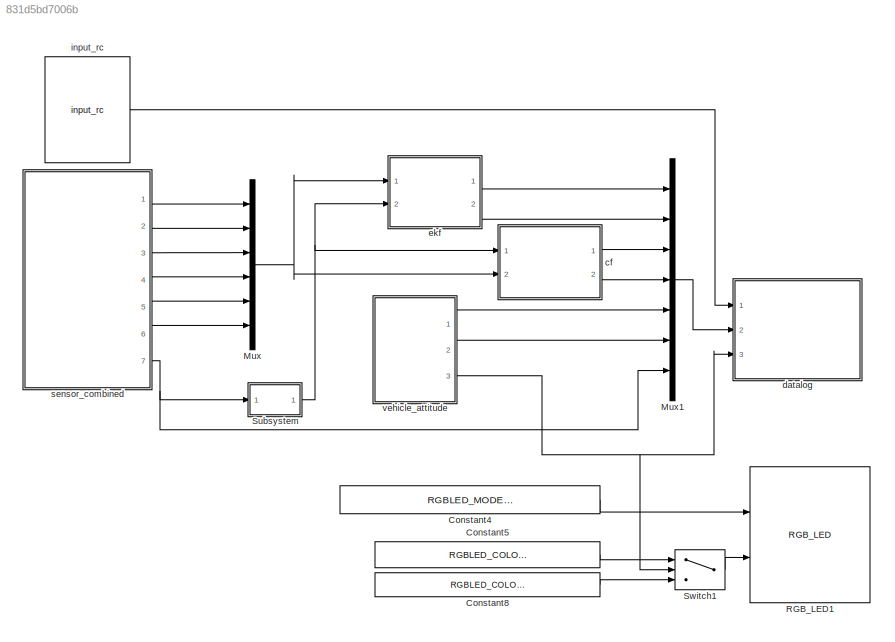
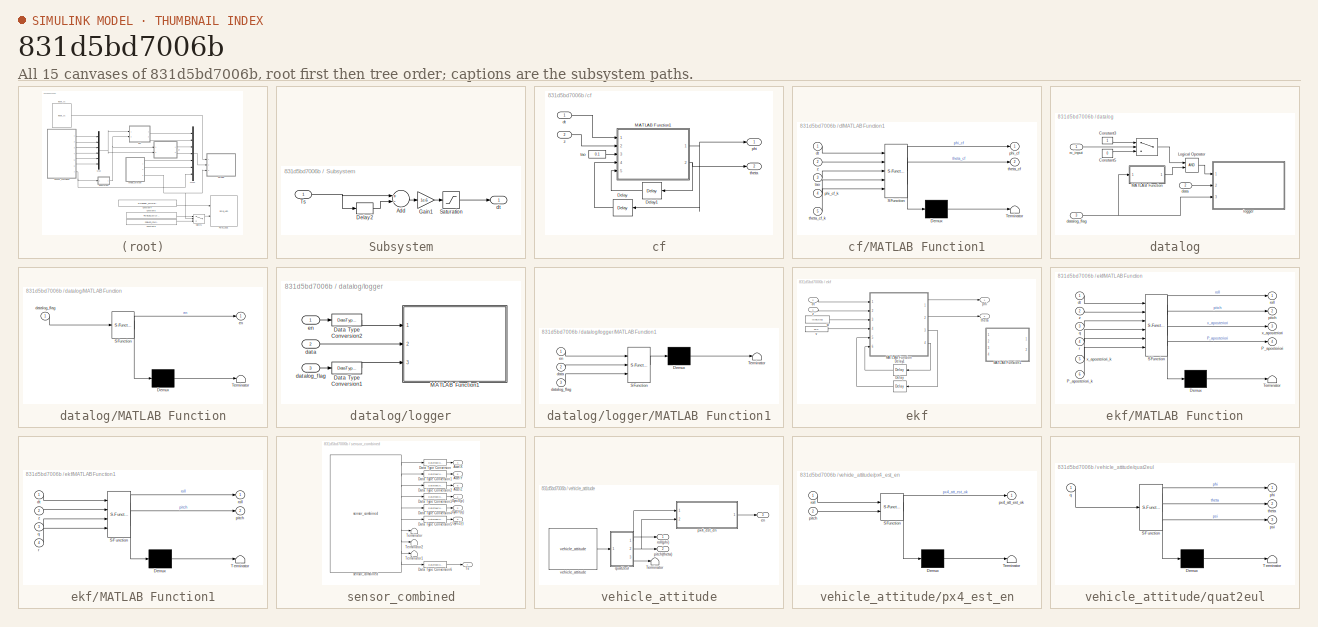
[diagram: thumbnail index - all 15 canvases of the model, root first then tree order]
MODEL slx_831d5bd7006b
KIND model
CONFIG AbsTol = auto
CONFIG EnableMultiTasking = on
CONFIG FixedStep = 0.001
CONFIG MaxStep = auto
CONFIG MinStep = auto
CONFIG RelTol = 1e-3
CONFIG SampleTimeConstraint = Unconstrained
CONFIG Solver = ode4
CONFIG SolverName = ode4
CONFIG StartTime = 0.0
CONFIG StopTime = 10.0
BLOCK [Constant] Constant4
  OutDataTypeStr = Enum: RGBLED_MODE_ENUM
  Value = RGBLED_MODE_ENUM.SL_MODE_BLINK_NORMAL
BLOCK [Constant] Constant5
  OutDataTypeStr = Enum: RGBLED_COLOR_ENUM
  Value = RGBLED_COLOR_ENUM.SL_COLOR_GREEN
BLOCK [Constant] Constant8
  OutDataTypeStr = Enum: RGBLED_COLOR_ENUM
  Value = RGBLED_COLOR_ENUM.SL_COLOR_RED
BLOCK [Mux] Mux
  DisplayOption = bar
  Inputs = 6
  Ports = [6, 1]
BLOCK [Mux] Mux1
  DisplayOption = bar
  Inputs = 7
  Ports = [7, 1]
BLOCK [Reference] RGB_LED1  REF=pixhawk_slib_sensors_actuators/RGB_LED
  Description = This block gives the user control over various lighting modes of the RGB LED available on the PX4 hardware. \nThis block accepts 2 inputs: Mode and Color.  These are enumeration data types.  You can find out what values are valid in the MATLAB command window by typing: \nEnumeration members for class 'RGBLED_COLOR_ENUM':\n    SL_COLOR_OFF\n    SL_COLOR_RED\n    SL_COLOR_GREEN\n    SL_COLOR_BLUE\n    SL_C...<+378ch>
  Ports = [2]
  SourceBlock = pixhawk_slib_sensors_actuators/RGB_LED
  SourceProductName = Pixhawk Target Blocks
  SourceType = PX4_RGBLED - controls the mode and color of the Pixhawk RGB LED
BLOCK [SubSystem] Subsystem
  Ports = [1, 1]
  RequestExecContextInheritance = off
  Variant = off
BLOCK [Sum] Subsystem/Add
  InputSameDT = off
  Inputs = +-
  OutDataTypeStr = Inherit: Inherit via internal rule
  Ports = [2, 1]
  SaturateOnIntegerOverflow = off
BLOCK [Delay] Subsystem/Delay2
  DelayLength = 1
  InputPortMap = u0
  Ports = [1, 1]
BLOCK [Gain] Subsystem/Gain1
  Gain = 1e-6
  OutDataTypeStr = Inherit: Inherit via internal rule
  ParamDataTypeStr = Inherit: Inherit via internal rule
  SaturateOnIntegerOverflow = off
BLOCK [Saturate] Subsystem/Saturation
  InputPortMap = u0
  LowerLimit = 0.001
  Ports = [1, 1]
  UpperLimit = 0.1
BLOCK [Inport] Subsystem/Ts
  IconDisplay = Port number
BLOCK [Outport] Subsystem/dt
  IconDisplay = Port number
BLOCK [Switch] Switch1
  Criteria = u2 ~= 0
  InputSameDT = off
  SaturateOnIntegerOverflow = off
  Threshold = 1500
BLOCK [SubSystem] cf
  Ports = [2, 2]
  RequestExecContextInheritance = off
  Variant = off
BLOCK [Delay] cf/Delay
  DelayLength = 1
  InitialCondition = 0
  InputPortMap = u0
  Ports = [1, 1]
BLOCK [Delay] cf/Delay1
  DelayLength = 1
  InitialCondition = 0
  InputPortMap = u0
  Ports = [1, 1]
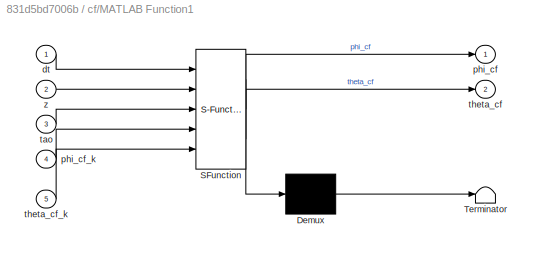
BLOCK [SubSystem] cf/MATLAB Function1
  ErrorFcn = Stateflow.Translate.translate
  PermitHierarchicalResolution = ExplicitOnly
  Ports = [5, 2]
  RequestExecContextInheritance = off
  SFBlockType = MATLAB Function
  TreatAsAtomicUnit = on
  Variant = off
BLOCK [Demux] cf/MATLAB Function1/ Demux 
  Outputs = 1
  Ports = [1, 1]
BLOCK [S-Function] cf/MATLAB Function1/ SFunction 
  EnableBusSupport = on
  FunctionName = sf_sfun
  PortCounts = [5 3]
  Ports = [5, 3]
  SFcnIsStateOwnerBlock = off
  SFunctionDeploymentMode = off
  Tag = Stateflow S-Function ekf_cf1 1
BLOCK [Terminator] cf/MATLAB Function1/ Terminator 
BLOCK [Inport] cf/MATLAB Function1/dt
  IconDisplay = Port number
BLOCK [Outport] cf/MATLAB Function1/phi_cf
  IconDisplay = Port number
BLOCK [Inport] cf/MATLAB Function1/phi_cf_k
  IconDisplay = Port number
  Port = 4
BLOCK [Inport] cf/MATLAB Function1/tao
  IconDisplay = Port number
  Port = 3
BLOCK [Outport] cf/MATLAB Function1/theta_cf
  IconDisplay = Port number
  Port = 2
BLOCK [Inport] cf/MATLAB Function1/theta_cf_k
  IconDisplay = Port number
  Port = 5
BLOCK [Inport] cf/MATLAB Function1/z
  IconDisplay = Port number
  Port = 2
BLOCK [Inport] cf/dt
  IconDisplay = Port number
BLOCK [Outport] cf/phi
  IconDisplay = Port number
BLOCK [Constant] cf/tao
  OutDataTypeStr = single
  Value = 0.1
BLOCK [Outport] cf/theta
  IconDisplay = Port number
  Port = 2
BLOCK [Inport] cf/z
  IconDisplay = Port number
  Port = 2
BLOCK [SubSystem] datalog
  Ports = [3]
  RequestExecContextInheritance = off
  Variant = off
BLOCK [Switch] datalog/ 
  Criteria = u2 > Threshold
  InputSameDT = off
  SaturateOnIntegerOverflow = off
  Threshold = 1600
BLOCK [Constant] datalog/Constant3
BLOCK [Constant] datalog/Constant5
  Value = 0
BLOCK [Logic] datalog/Logical Operator
  AllPortsSameDT = off
  OutDataTypeStr = boolean
  Ports = [2, 1]
BLOCK [SubSystem] datalog/MATLAB Function
  ErrorFcn = Stateflow.Translate.translate
  PermitHierarchicalResolution = ExplicitOnly
  Ports = [1, 1]
  RequestExecContextInheritance = off
  SFBlockType = MATLAB Function
  TreatAsAtomicUnit = on
  Variant = off
BLOCK [Demux] datalog/MATLAB Function/ Demux 
  Outputs = 1
  Ports = [1, 1]
BLOCK [S-Function] datalog/MATLAB Function/ SFunction 
  EnableBusSupport = on
  FunctionName = sf_sfun
  PortCounts = [1 2]
  Ports = [1, 2]
  SFcnIsStateOwnerBlock = off
  SFunctionDeploymentMode = off
  Tag = Stateflow S-Function ekf_cf1 4
BLOCK [Terminator] datalog/MATLAB Function/ Terminator 
BLOCK [Inport] datalog/MATLAB Function/datalog_flag
  IconDisplay = Port number
BLOCK [Outport] datalog/MATLAB Function/en
  IconDisplay = Port number
BLOCK [Inport] datalog/data
  IconDisplay = Port number
  Port = 2
BLOCK [Inport] datalog/datalog_flag
  IconDisplay = Port number
  Port = 3
BLOCK [SubSystem] datalog/logger
  Ports = [3]
  RequestExecContextInheritance = off
  Variant = off
BLOCK [DataTypeConversion] datalog/logger/Data Type Conversion1
  OutDataTypeStr = boolean
  RndMeth = Floor
  SaturateOnIntegerOverflow = off
BLOCK [DataTypeConversion] datalog/logger/Data Type Conversion2
  OutDataTypeStr = boolean
  RndMeth = Floor
  SaturateOnIntegerOverflow = off
BLOCK [SubSystem] datalog/logger/MATLAB Function1
  ErrorFcn = Stateflow.Translate.translate
  PermitHierarchicalResolution = ExplicitOnly
  Ports = [3]
  RequestExecContextInheritance = off
  SFBlockType = MATLAB Function
  TreatAsAtomicUnit = on
  Variant = off
BLOCK [Demux] datalog/logger/MATLAB Function1/ Demux 
  Outputs = 1
  Ports = [1, 1]
BLOCK [S-Function] datalog/logger/MATLAB Function1/ SFunction 
  EnableBusSupport = on
  FunctionName = sf_sfun
  Parameters = cacheflag,logname,numRecs
  PortCounts = [3 1]
  Ports = [3, 1]
  SFcnIsStateOwnerBlock = off
  SFunctionDeploymentMode = off
  Tag = Stateflow S-Function ekf_cf1 5
BLOCK [Terminator] datalog/logger/MATLAB Function1/ Terminator 
BLOCK [Inport] datalog/logger/MATLAB Function1/data
  IconDisplay = Port number
  Port = 2
BLOCK [Inport] datalog/logger/MATLAB Function1/datalog_flag
  IconDisplay = Port number
  Port = 3
BLOCK [Inport] datalog/logger/MATLAB Function1/en
  IconDisplay = Port number
BLOCK [Inport] datalog/logger/data
  IconDisplay = Port number
  Port = 2
BLOCK [Inport] datalog/logger/datalog_flag
  IconDisplay = Port number
  Port = 3
BLOCK [Inport] datalog/logger/en
  IconDisplay = Port number
BLOCK [Inport] datalog/rc_input
  IconDisplay = Port number
BLOCK [SubSystem] ekf
  Ports = [2, 2]
  RequestExecContextInheritance = off
  Variant = off
BLOCK [Delay] ekf/Delay
  DelayLength = 1
  InitialCondition = single([0, 0, 0, 0, 0, -1]')
  InputPortMap = u0
  Ports = [1, 1]
BLOCK [Delay] ekf/Delay1
  DelayLength = 1
  InitialCondition = single(eye(6, 6)*100)
  InputPortMap = u0
  Ports = [1, 1]
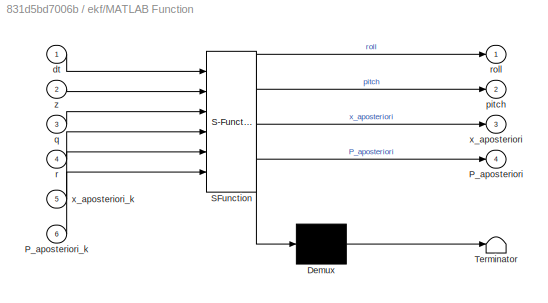
BLOCK [SubSystem] ekf/MATLAB Function
  ErrorFcn = Stateflow.Translate.translate
  PermitHierarchicalResolution = ExplicitOnly
  Ports = [6, 4]
  RequestExecContextInheritance = off
  SFBlockType = MATLAB Function
  TreatAsAtomicUnit = on
  Variant = off
BLOCK [Demux] ekf/MATLAB Function/ Demux 
  Outputs = 1
  Ports = [1, 1]
BLOCK [S-Function] ekf/MATLAB Function/ SFunction 
  EnableBusSupport = on
  FunctionName = sf_sfun
  PortCounts = [6 5]
  Ports = [6, 5]
  SFcnIsStateOwnerBlock = off
  SFunctionDeploymentMode = off
  Tag = Stateflow S-Function ekf_cf1 2
BLOCK [Terminator] ekf/MATLAB Function/ Terminator 
BLOCK [Outport] ekf/MATLAB Function/P_aposteriori
  IconDisplay = Port number
  Port = 4
BLOCK [Inport] ekf/MATLAB Function/P_aposteriori_k
  IconDisplay = Port number
  Port = 6
BLOCK [Inport] ekf/MATLAB Function/dt
  IconDisplay = Port number
BLOCK [Outport] ekf/MATLAB Function/pitch
  IconDisplay = Port number
  Port = 2
BLOCK [Inport] ekf/MATLAB Function/q
  IconDisplay = Port number
  Port = 3
BLOCK [Inport] ekf/MATLAB Function/r
  IconDisplay = Port number
  Port = 4
BLOCK [Outport] ekf/MATLAB Function/roll
  IconDisplay = Port number
BLOCK [Outport] ekf/MATLAB Function/x_aposteriori
  IconDisplay = Port number
  Port = 3
BLOCK [Inport] ekf/MATLAB Function/x_aposteriori_k
  IconDisplay = Port number
  Port = 5
BLOCK [Inport] ekf/MATLAB Function/z
  IconDisplay = Port number
  Port = 2
BLOCK [SubSystem] ekf/MATLAB Function1
  Commented = on
  ErrorFcn = Stateflow.Translate.translate
  PermitHierarchicalResolution = ExplicitOnly
  Ports = [4, 2]
  RequestExecContextInheritance = off
  SFBlockType = MATLAB Function
  TreatAsAtomicUnit = on
  Variant = off
BLOCK [Demux] ekf/MATLAB Function1/ Demux 
  Outputs = 1
  Ports = [1, 1]
BLOCK [S-Function] ekf/MATLAB Function1/ SFunction 
  EnableBusSupport = on
  FunctionName = sf_sfun
  PortCounts = [4 3]
  Ports = [4, 3]
  SFcnIsStateOwnerBlock = off
  SFunctionDeploymentMode = off
  Tag = Stateflow S-Function ekf_cf1 7
BLOCK [Terminator] ekf/MATLAB Function1/ Terminator 
BLOCK [Inport] ekf/MATLAB Function1/dt
  IconDisplay = Port number
BLOCK [Outport] ekf/MATLAB Function1/pitch
  IconDisplay = Port number
  Port = 2
BLOCK [Inport] ekf/MATLAB Function1/q
  IconDisplay = Port number
  Port = 3
BLOCK [Inport] ekf/MATLAB Function1/r
  IconDisplay = Port number
  Port = 4
BLOCK [Outport] ekf/MATLAB Function1/roll
  IconDisplay = Port number
BLOCK [Inport] ekf/MATLAB Function1/z
  IconDisplay = Port number
  Port = 2
BLOCK [Inport] ekf/dt
  IconDisplay = Port number
  Port = 2
BLOCK [Outport] ekf/phi
  IconDisplay = Port number
BLOCK [Outport] ekf/theta
  IconDisplay = Port number
  Port = 2
BLOCK [Constant] ekf/v
  Value = 50.0
BLOCK [Constant] ekf/w
  Value = [0.08,0.01]
BLOCK [Inport] ekf/z
  IconDisplay = Port number
BLOCK [Reference] input_rc  REF=pixhawk_slib_sensors_actuators/input_rc
  Description = RC Input Block\n\nThis block provides user input control to the model.\nIt uses the input_rc uORB topic.\n\nThe user has the ability to choose which channels are available as outputs from this block and also some optional outputs. These include \nChannels 1 through 18\ndouble data type indicating the PWM value from the controller \nmeasured pulse widths for each of the supported channels \nChannel Count \nu...<+1797ch>
  Ports = [0, 1]
  SourceBlock = pixhawk_slib_sensors_actuators/input_rc
  SourceProductName = Pixhawk Target Blocks
  SourceType = PX4_Input_RC
BLOCK [SubSystem] sensor_combined
  Ports = [0, 7]
  RequestExecContextInheritance = off
  Variant = off
BLOCK [Outport] sensor_combined/AccelX
  IconDisplay = Port number
  Port = 4
BLOCK [Outport] sensor_combined/AccelY
  IconDisplay = Port number
  Port = 5
BLOCK [Outport] sensor_combined/AccelZ
  IconDisplay = Port number
  Port = 6
BLOCK [DataTypeConversion] sensor_combined/Data Type Conversion
  OutDataTypeStr = single
  RndMeth = Floor
  SaturateOnIntegerOverflow = off
BLOCK [DataTypeConversion] sensor_combined/Data Type Conversion1
  OutDataTypeStr = single
  RndMeth = Floor
  SaturateOnIntegerOverflow = off
BLOCK [DataTypeConversion] sensor_combined/Data Type Conversion2
  OutDataTypeStr = single
  RndMeth = Floor
  SaturateOnIntegerOverflow = off
BLOCK [DataTypeConversion] sensor_combined/Data Type Conversion3
  OutDataTypeStr = single
  RndMeth = Floor
  SaturateOnIntegerOverflow = off
BLOCK [DataTypeConversion] sensor_combined/Data Type Conversion4
  OutDataTypeStr = single
  RndMeth = Floor
  SaturateOnIntegerOverflow = off
BLOCK [DataTypeConversion] sensor_combined/Data Type Conversion5
  OutDataTypeStr = single
  RndMeth = Floor
  SaturateOnIntegerOverflow = off
BLOCK [DataTypeConversion] sensor_combined/Data Type Conversion6
  OutDataTypeStr = single
  RndMeth = Floor
  SaturateOnIntegerOverflow = off
BLOCK [Outport] sensor_combined/GyroX(p)
  IconDisplay = Port number
BLOCK [Outport] sensor_combined/GyroY(q)
  IconDisplay = Port number
  Port = 2
BLOCK [Outport] sensor_combined/GyroZ(r)
  IconDisplay = Port number
  Port = 3
BLOCK [Terminator] sensor_combined/Terminator
BLOCK [Terminator] sensor_combined/Terminator1
BLOCK [Terminator] sensor_combined/Terminator2
BLOCK [Outport] sensor_combined/Ts
  IconDisplay = Port number
  Port = 7
BLOCK [Reference] sensor_combined/sensor_combined  REF=pixhawk_slib_sensors_actuators/sensor_combined
  Description = Sensor Combined Block\n\nThis block enables access to the various sensors available on the px4fmu-v2 hardware.  \nThe user can use these signals in the Simulink control model.  \nThe sample time needs to be provided in the mask dialog.  \nOptional output ports can also be selected.  \nRefer to the sample model: px4demo_attitude_control.slx\n\nSignal definitions: \nMagnetometer (x,y,z) - single values – Mag...<+514ch>
  Ports = [0, 10]
  SourceBlock = pixhawk_slib_sensors_actuators/sensor_combined
  SourceProductName = Pixhawk Target Blocks
  SourceType = PX4_Sensor_Combined
BLOCK [SubSystem] vehicle_attitude
  Ports = [0, 3]
  RequestExecContextInheritance = off
  Variant = off
BLOCK [Terminator] vehicle_attitude/Terminator
BLOCK [Outport] vehicle_attitude/en
  IconDisplay = Port number
  Port = 3
BLOCK [Outport] vehicle_attitude/pitch(theta)
  IconDisplay = Port number
  Port = 2
BLOCK [SubSystem] vehicle_attitude/px4_est_en
  ErrorFcn = Stateflow.Translate.translate
  PermitHierarchicalResolution = ExplicitOnly
  Ports = [2, 1]
  RequestExecContextInheritance = off
  SFBlockType = MATLAB Function
  TreatAsAtomicUnit = on
  Variant = off
BLOCK [Demux] vehicle_attitude/px4_est_en/ Demux 
  Outputs = 1
  Ports = [1, 1]
BLOCK [S-Function] vehicle_attitude/px4_est_en/ SFunction 
  EnableBusSupport = on
  FunctionName = sf_sfun
  PortCounts = [2 2]
  Ports = [2, 2]
  SFcnIsStateOwnerBlock = off
  SFunctionDeploymentMode = off
  Tag = Stateflow S-Function ekf_cf1 3
BLOCK [Terminator] vehicle_attitude/px4_est_en/ Terminator 
BLOCK [Inport] vehicle_attitude/px4_est_en/pitch
  IconDisplay = Port number
  Port = 2
BLOCK [Outport] vehicle_attitude/px4_est_en/px4_att_est_ok
  IconDisplay = Port number
BLOCK [Inport] vehicle_attitude/px4_est_en/roll
  IconDisplay = Port number
BLOCK [SubSystem] vehicle_attitude/quat2eul
  ErrorFcn = Stateflow.Translate.translate
  PermitHierarchicalResolution = ExplicitOnly
  Ports = [1, 3]
  RequestExecContextInheritance = off
  SFBlockType = MATLAB Function
  TreatAsAtomicUnit = on
  Variant = off
BLOCK [Demux] vehicle_attitude/quat2eul/ Demux 
  Outputs = 1
  Ports = [1, 1]
BLOCK [S-Function] vehicle_attitude/quat2eul/ SFunction 
  EnableBusSupport = on
  FunctionName = sf_sfun
  PortCounts = [1 4]
  Ports = [1, 4]
  SFcnIsStateOwnerBlock = off
  SFunctionDeploymentMode = off
  Tag = Stateflow S-Function ekf_cf1 10
BLOCK [Terminator] vehicle_attitude/quat2eul/ Terminator 
BLOCK [Outport] vehicle_attitude/quat2eul/phi
  IconDisplay = Port number
BLOCK [Outport] vehicle_attitude/quat2eul/psi
  IconDisplay = Port number
  Port = 3
BLOCK [Inport] vehicle_attitude/quat2eul/q
  IconDisplay = Port number
BLOCK [Outport] vehicle_attitude/quat2eul/theta
  IconDisplay = Port number
  Port = 2
BLOCK [Outport] vehicle_attitude/roll(phi)
  IconDisplay = Port number
BLOCK [Reference] vehicle_attitude/vehicle_attitude  REF=pixhawk_slib_sensors_actuators/vehicle_attitude
  Description = This block gives access to the running service that calculates the vehicle’s attitude.  A uORB topic (vehicle_attitude (attitude measurements)) publisher MUST be running in order for this block to provide valid signal values.  The available ones as of v1.3 are: \nattitude_estimator_ekf – EKF-Extended Kalman Filter for attitude estimation \nattitude_estimator_so3 – SO(3)-attitude estimation by using ...<+515ch>
  Ports = [0, 1]
  SourceBlock = pixhawk_slib_sensors_actuators/vehicle_attitude
  SourceProductName = Pixhawk Target Blocks
  SourceType = PX4_Vehicle_Attitude
LINE Constant4:1 -> RGB_LED1:1
LINE Constant5:1 -> Switch1:1
LINE Constant8:1 -> Switch1:3
LINE Mux1:1 -> datalog:2
NET Mux:1 -> cf:2, ekf:1
LINE Subsystem/Add:1 -> Subsystem/Gain1:1
LINE Subsystem/Delay2:1 -> Subsystem/Add:2
LINE Subsystem/Gain1:1 -> Subsystem/Saturation:1
LINE Subsystem/Saturation:1 -> Subsystem/dt:1
NET Subsystem/Ts:1 -> Subsystem/Add:1, Subsystem/Delay2:1
NET Subsystem:1 -> cf:1, ekf:2
LINE Switch1:1 -> RGB_LED1:2
LINE cf/Delay1:1 -> cf/MATLAB Function1:5
LINE cf/Delay:1 -> cf/MATLAB Function1:4
NET cf/MATLAB Function1:1 -> cf/Delay:1, cf/phi:1
NET cf/MATLAB Function1:2 -> cf/Delay1:1, cf/theta:1
LINE cf/dt:1 -> cf/MATLAB Function1:1
LINE cf/tao:1 -> cf/MATLAB Function1:3
LINE cf/z:1 -> cf/MATLAB Function1:2
LINE cf:1 -> Mux1:3
LINE cf:2 -> Mux1:4
LINE datalog/ :1 -> datalog/Logical Operator:1
LINE datalog/Constant3:1 -> datalog/ :1
LINE datalog/Constant5:1 -> datalog/ :3
LINE datalog/Logical Operator:1 -> datalog/logger:1
LINE datalog/MATLAB Function:1 -> datalog/Logical Operator:2
LINE datalog/data:1 -> datalog/logger:2
NET datalog/datalog_flag:1 -> datalog/MATLAB Function:1, datalog/logger:3
LINE datalog/logger/Data Type Conversion1:1 -> datalog/logger/MATLAB Function1:3
LINE datalog/logger/Data Type Conversion2:1 -> datalog/logger/MATLAB Function1:1
LINE datalog/logger/data:1 -> datalog/logger/MATLAB Function1:2
LINE datalog/logger/datalog_flag:1 -> datalog/logger/Data Type Conversion1:1
LINE datalog/logger/en:1 -> datalog/logger/Data Type Conversion2:1
LINE datalog/rc_input:1 -> datalog/ :2
LINE ekf/Delay1:1 -> ekf/MATLAB Function:6
LINE ekf/Delay:1 -> ekf/MATLAB Function:5
LINE ekf/MATLAB Function:1 -> ekf/phi:1
LINE ekf/MATLAB Function:2 -> ekf/theta:1
LINE ekf/MATLAB Function:3 -> ekf/Delay:1
LINE ekf/MATLAB Function:4 -> ekf/Delay1:1
LINE ekf/dt:1 -> ekf/MATLAB Function:1
LINE ekf/v:1 -> ekf/MATLAB Function:4
LINE ekf/w:1 -> ekf/MATLAB Function:3
LINE ekf/z:1 -> ekf/MATLAB Function:2
LINE ekf:1 -> Mux1:1
LINE ekf:2 -> Mux1:2
LINE input_rc:1 -> datalog:1
LINE sensor_combined/Data Type Conversion1:1 -> sensor_combined/AccelY:1
LINE sensor_combined/Data Type Conversion2:1 -> sensor_combined/AccelZ:1
LINE sensor_combined/Data Type Conversion3:1 -> sensor_combined/GyroX(p):1
LINE sensor_combined/Data Type Conversion4:1 -> sensor_combined/GyroY(q):1
LINE sensor_combined/Data Type Conversion5:1 -> sensor_combined/GyroZ(r):1
LINE sensor_combined/Data Type Conversion6:1 -> sensor_combined/Ts:1
LINE sensor_combined/Data Type Conversion:1 -> sensor_combined/AccelX:1
LINE sensor_combined/sensor_combined:1 -> sensor_combined/Data Type Conversion:1
LINE sensor_combined/sensor_combined:10 -> sensor_combined/Data Type Conversion6:1
LINE sensor_combined/sensor_combined:2 -> sensor_combined/Data Type Conversion1:1
LINE sensor_combined/sensor_combined:3 -> sensor_combined/Data Type Conversion2:1
LINE sensor_combined/sensor_combined:4 -> sensor_combined/Data Type Conversion3:1
LINE sensor_combined/sensor_combined:5 -> sensor_combined/Data Type Conversion4:1
LINE sensor_combined/sensor_combined:6 -> sensor_combined/Data Type Conversion5:1
LINE sensor_combined/sensor_combined:7 -> sensor_combined/Terminator:1
LINE sensor_combined/sensor_combined:8 -> sensor_combined/Terminator2:1
LINE sensor_combined/sensor_combined:9 -> sensor_combined/Terminator1:1
LINE sensor_combined:1 -> Mux:1
LINE sensor_combined:2 -> Mux:2
LINE sensor_combined:3 -> Mux:3
LINE sensor_combined:4 -> Mux:4
LINE sensor_combined:5 -> Mux:5
LINE sensor_combined:6 -> Mux:6
NET sensor_combined:7 -> Mux1:7, Subsystem:1
LINE vehicle_attitude/px4_est_en:1 -> vehicle_attitude/en:1
NET vehicle_attitude/quat2eul:1 -> vehicle_attitude/px4_est_en:1, vehicle_attitude/roll(phi):1
NET vehicle_attitude/quat2eul:2 -> vehicle_attitude/pitch(theta):1, vehicle_attitude/px4_est_en:2
LINE vehicle_attitude/quat2eul:3 -> vehicle_attitude/Terminator:1
LINE vehicle_attitude/vehicle_attitude:1 -> vehicle_attitude/quat2eul:1
LINE vehicle_attitude:1 -> Mux1:5
LINE vehicle_attitude:2 -> Mux1:6
NET vehicle_attitude:3 -> Switch1:2, datalog:3
note: NET lines group one-source signal fan-out (src -> all destinations, sorted); 1:1 wires keep LINE
CHART cf/MATLAB Function1 states=1 transitions=1
  STATE_LABEL 'eML_blk_kernel()'
  STATE_LABEL "SCRIPT:\nfunction [ phi_cf, theta_cf ] = Attitude_cf(dt, z, tao, phi_cf_k, theta_cf_k)\n%Function description:\n%  complementary filter  for attitude estimation.\n%Input:\n%  dt: sampling time, unit: s\n%  z: three-axis gyroscope and three-axis accelerometer data, [gx, gy, gz, ax, ay, az]', unit: rad/s, m/s2\n%  phi_cf_k, theta_cf_k: angle value of the previous sampling, unit: rad\n%  tao: filter coeffici...<+476ch>"
CHART ekf/MATLAB Function states=1 transitions=1
  STATE_LABEL 'eML_blk_kernel()'
  STATE_LABEL 'SCRIPT:\nfunction [roll, pitch, x_aposteriori, P_aposteriori] = Attitude_ekf( dt, z, q, r, x_aposteriori_k, P_aposteriori_k)\n%Function description:\n%  Extended Kalman Filtering Method for State Estimation\n%Input:\n%  dt: Update Cycle\n%  z: Measured value (6,1)\n%  q: System noise,r:Measuring noise\n%  x_aposteriori_k: State estimate at the last moment (6,1)\n%  P_aposteriori_k: Estimate covariance at t...<+1889ch>'
CHART vehicle_attitude/px4_est_en states=1 transitions=1
  STATE_LABEL 'eML_blk_kernel()'
  STATE_LABEL 'SCRIPT:\nfunction px4_att_est_ok = px4_est_en(roll, pitch)\n\nif abs(roll) < 0.000001 && abs(pitch) < 0.000001\n    px4_att_est_ok = false;\nelse\n    px4_att_est_ok = true;\nend'
CHART datalog/MATLAB Function states=1 transitions=1
  STATE_LABEL 'eML_blk_kernel()'
  STATE_LABEL 'SCRIPT:\nfunction en = fcn(datalog_flag)\n\npersistent count;\nif isempty(count)\n    count=0;\nend\n\nif datalog_flag\n    count=count+1;\nend\nif count>60000\n    en = false;\n    count=0;\nelse\n    en = true;\nend\n\n'
CHART datalog/logger/MATLAB Function1 states=1 transitions=1
  STATE_LABEL 'eML_blk_kernel()'
  STATE_LABEL 'SCRIPT:\n%% Binary Logger\n% Note: All data needs to be of the same type (e.g. double)\n% Header information format:\n%           String "MWLOGV##"\n%           Time/Date 4 bytes (time())\n%           Number of Signals per record Logged 1 byte (256 max)\n%           Data Type of Signals Logged  1 byte (1-10)\n%           Number of bytes per record 2 bytes (65535 max)\n% This does NOT include the number of ...<+3608ch>'
CHART ekf/MATLAB Function1 states=1 transitions=1
  STATE_LABEL 'eML_blk_kernel()'
  STATE_LABEL 'SCRIPT:\nfunction [roll, pitch] = Attitude_ekf( dt, z, q, r)\n%Function description:\n%  Extended Kalman Filtering Method for State Estimation\n%Input:\n%  dt: Update Cycle\n%  z: Measured value (6,1)\n%  q: System noise,r:Measuring noise\n%  x_aposteriori_k: State estimate at the last moment (6,1)\n%  P_aposteriori_k: Estimate covariance at the last moment (6,6)\n%Output:\n%  x_aposteriori：State estimate of...<+2095ch>'
CHART vehicle_attitude/quat2eul states=1 transitions=1
  STATE_LABEL 'eML_blk_kernel()'
  STATE_LABEL 'SCRIPT:\nfunction [phi,theta,psi] = quat2eul(q)\n% Conversion from Quaternion to Euler angles based on the PX4 Firmware\n% v1.6.5 release.\n% \n% Quaternion -> DCM -> Euler Angles\n% INPUT:\n%   q: Quaternion vector of the format: (a + bi + cj + dk)\n% OUTPUT:\n%   [phi,theta,psi]: Euler angles in radians.\n% \n \n    a = q(1);\n    b = q(2);\n    c = q(3);\n    d = q(4);\n\n    aSq = a*a;\n    bSq = b*b;\n    cSq =...<+673ch>'
